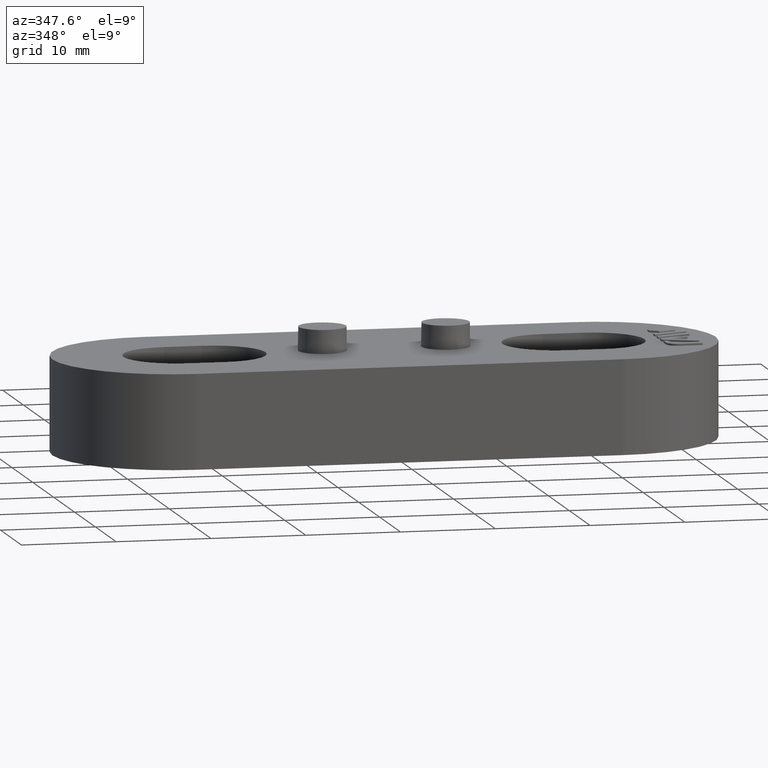
[diagram: clean part render]
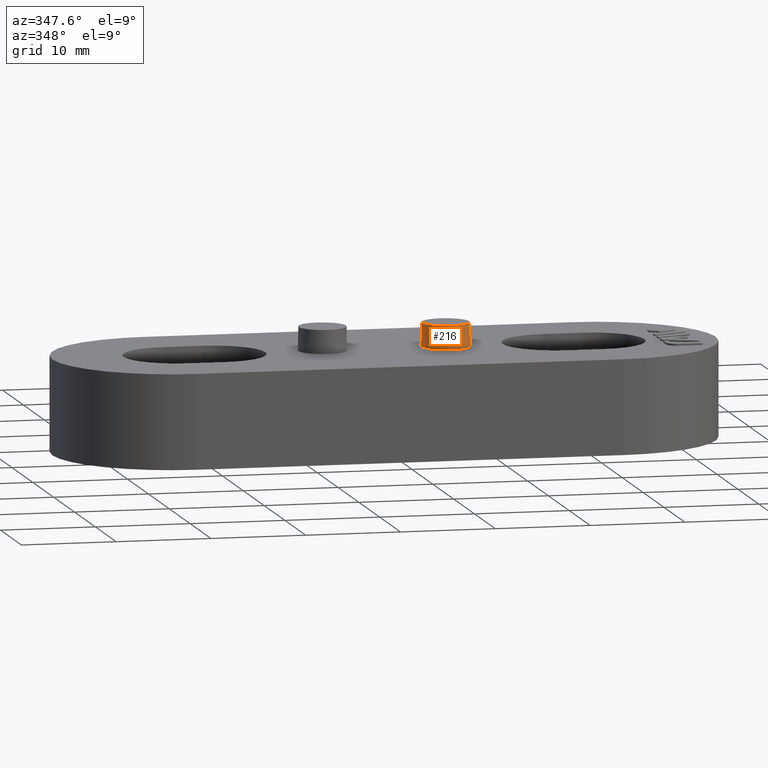
[diagram: same view with one face highlighted and labeled with its STEP entity id]
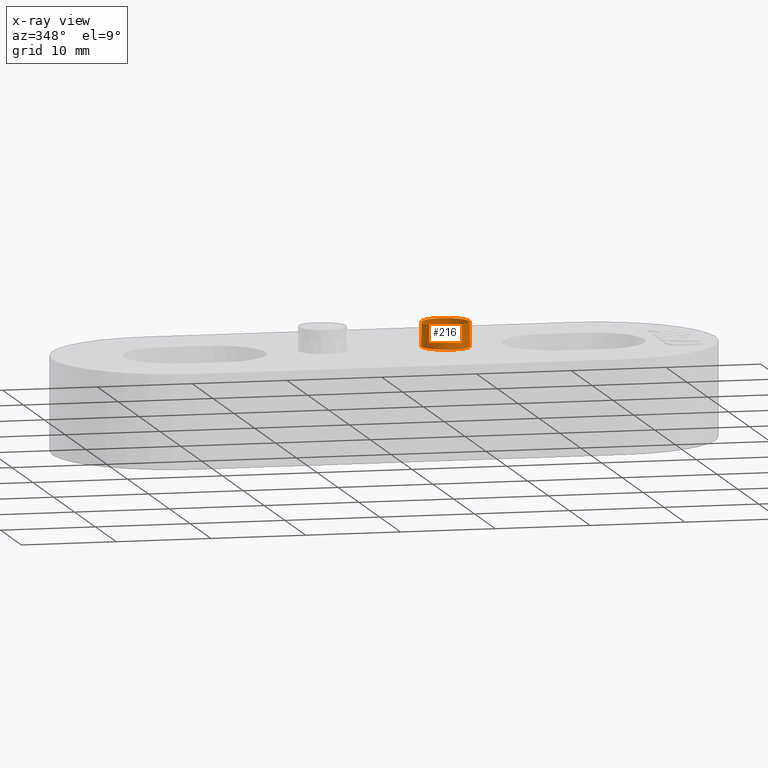
[diagram: x-ray of the same camera — body ghosted, the highlighted face saturated]
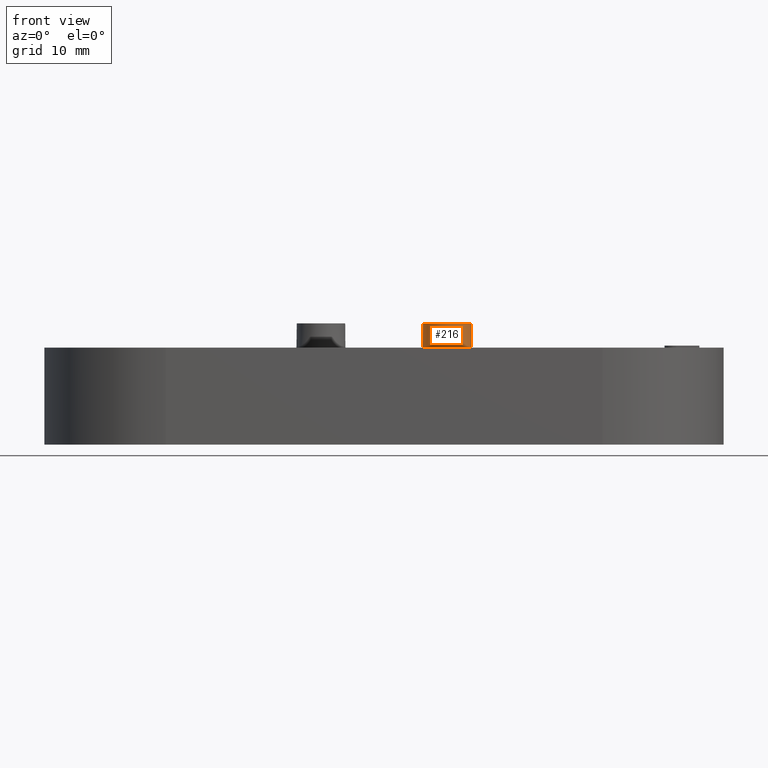
[diagram: same view with one face highlighted and labeled with its STEP entity id]
A machine part, auxiliary view. The second image highlights one B-rep face of the part: STEP entity #216.
The next image is the same camera in x-ray: the body ghosted, the highlighted face saturated — about 0% of this face is hidden behind the body in this view.
A second angle (front view) of the same face is appended — the face is thin or edge-on in the first view.
In plain terms, the highlighted conical surface has half-angle 1 deg.
Its self-contained STEP definition (entity closure, byte-faithful):
#216 = ADVANCED_FACE( '', ( #613, #614 ), #615, .T. );
#613 = FACE_OUTER_BOUND( '', #1089, .T. );
#614 = FACE_BOUND( '', #1090, .T. );
#615 = CONICAL_SURFACE( '', #1091, 2.50000000000000, 0.0174532925199433 );
#1089 = EDGE_LOOP( '', ( #2452 ) );
#1090 = EDGE_LOOP( '', ( #2453 ) );
#1091 = AXIS2_PLACEMENT_3D( '', #2454, #2455, #2456 );
#2452 = ORIENTED_EDGE( '', *, *, #2978, .F. );
#2453 = ORIENTED_EDGE( '', *, *, #3422, .T. );
#2454 = CARTESIAN_POINT( '', ( 5.75000000000000, 0.00237567297406774, 12.5000000000000 ) );
#2455 = DIRECTION( '', ( 0.000000000000000, -6.12303176911189E-017, -1.00000000000000 ) );
#2456 = DIRECTION( '', ( 0.000000000000000, 1.00000000000000, -6.12303176911189E-017 ) );
#2978 = EDGE_CURVE( '', #3530, #3530, #3531, .T. );
#3422 = EDGE_CURVE( '', #4288, #4288, #4289, .T. );
#3530 = VERTEX_POINT( '', #4437 );
#3531 = CIRCLE( '', #4438, 2.54363766232055 );
#4288 = VERTEX_POINT( '', #5570 );
#4289 = CIRCLE( '', #5571, 2.50000000000000 );
#4437 = CARTESIAN_POINT( '', ( 5.75000000000000, 2.54601333529461, 9.99999999999999 ) );
#4438 = AXIS2_PLACEMENT_3D( '', #5764, #5765, #5766 );
#5570 = CARTESIAN_POINT( '', ( 8.25000000000000, 0.00237567297406774, 12.5000000000000 ) );
#5571 = AXIS2_PLACEMENT_3D( '', #6346, #6347, #6348 );
#5764 = CARTESIAN_POINT( '', ( 5.75000000000000, 0.00237567297406774, 9.99999999999999 ) );
#5765 = DIRECTION( '', ( 0.000000000000000, -6.12303176911189E-017, -1.00000000000000 ) );
#5766 = DIRECTION( '', ( 0.000000000000000, 1.00000000000000, -6.12303176911189E-017 ) );
#6346 = CARTESIAN_POINT( '', ( 5.75000000000000, 0.00237567297406774, 12.5000000000000 ) );
#6347 = DIRECTION( '', ( 0.000000000000000, -6.12303176911189E-017, -1.00000000000000 ) );
#6348 = DIRECTION( '', ( 1.00000000000000, 0.000000000000000, 0.000000000000000 ) );